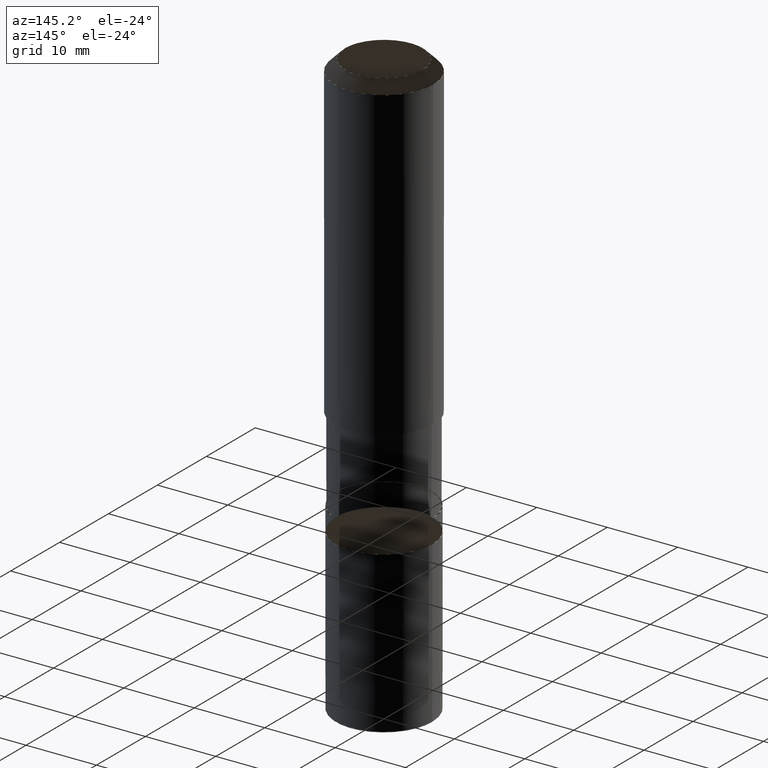
[diagram: clean part render]
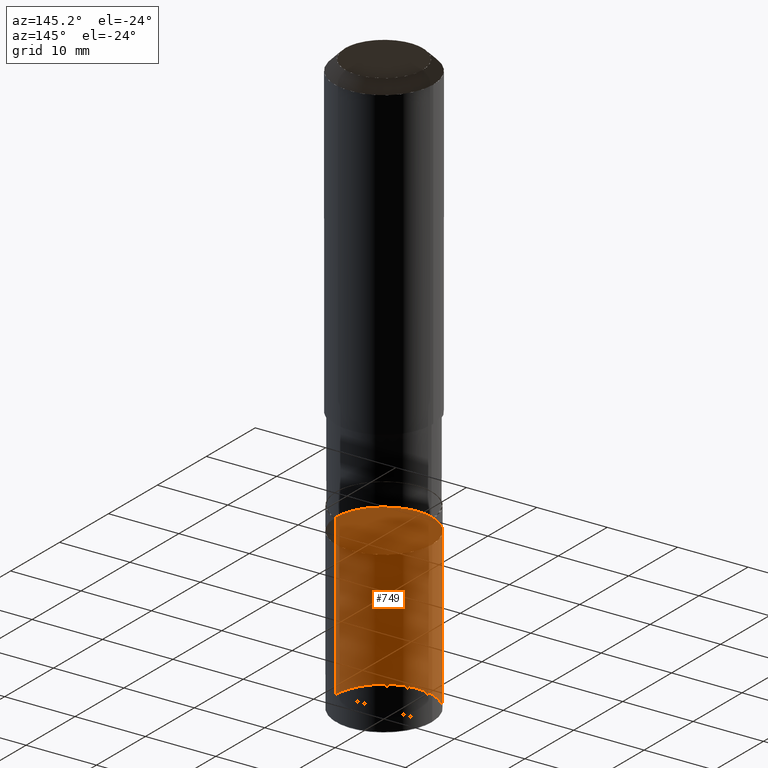
[diagram: same view with one face highlighted and labeled with its STEP entity id]
A machine part, auxiliary view. The second image highlights one B-rep face of the part: STEP entity #749.
In plain terms, the highlighted face is a freeform B-spline surface patch.
Its self-contained STEP definition (entity closure, byte-faithful):
#620=CARTESIAN_POINT('',(6.85,0.0,-37.9));
#621=CARTESIAN_POINT('',(6.85,6.85,-37.9));
#622=CARTESIAN_POINT('',(0.0,6.85,-37.9));
#623=CARTESIAN_POINT('',(-6.85,6.85,-37.9));
#624=CARTESIAN_POINT('',(-6.85,0.0,-37.9));
#625=CARTESIAN_POINT('',(6.85,0.0,-15.25));
#626=CARTESIAN_POINT('',(6.85,6.85,-15.25));
#627=CARTESIAN_POINT('',(0.0,6.85,-15.25));
#628=CARTESIAN_POINT('',(-6.85,6.85,-15.25));
#629=CARTESIAN_POINT('',(-6.85,0.0,-15.25));
#730=(
BOUNDED_SURFACE()
B_SPLINE_SURFACE(1,2,(
(#620,#621,#622,#623,#624),
(#625,#626,#627,#628,#629)
), .UNSPECIFIED.,.F.,.F.,.F.)
B_SPLINE_SURFACE_WITH_KNOTS((2,2),(3,2,3),(
0.0,1.0),(
0.0,0.5,1.0), .UNSPECIFIED.)
GEOMETRIC_REPRESENTATION_ITEM()
RATIONAL_B_SPLINE_SURFACE(((1.0,0.707106781187,1.0,0.707106781187,1.0),
(1.0,0.707106781187,1.0,0.707106781187,1.0)
))
REPRESENTATION_ITEM('')
SURFACE()
);
#731=(
BOUNDED_CURVE()
B_SPLINE_CURVE(2,(#624,#623,#622,#621,#620),.UNSPECIFIED.,.F.,.F.)
B_SPLINE_CURVE_WITH_KNOTS((3,2,3),
(0.0,0.5,1.0),.UNSPECIFIED.)
CURVE()
GEOMETRIC_REPRESENTATION_ITEM()
RATIONAL_B_SPLINE_CURVE((1.0,0.707106781187,1.0,0.707106781187,1.0))
REPRESENTATION_ITEM('')
);
#732=(
BOUNDED_CURVE()
B_SPLINE_CURVE(1,(#620,#625),.UNSPECIFIED.,.F.,.F.)
B_SPLINE_CURVE_WITH_KNOTS((2,2),
(0.0,1.0),.UNSPECIFIED.)
CURVE()
GEOMETRIC_REPRESENTATION_ITEM()
RATIONAL_B_SPLINE_CURVE((1.0,1.0))
REPRESENTATION_ITEM('')
);
#733=(
BOUNDED_CURVE()
B_SPLINE_CURVE(2,(#625,#626,#627,#628,#629),.UNSPECIFIED.,.F.,.F.)
B_SPLINE_CURVE_WITH_KNOTS((3,2,3),
(0.0,0.5,1.0),.UNSPECIFIED.)
CURVE()
GEOMETRIC_REPRESENTATION_ITEM()
RATIONAL_B_SPLINE_CURVE((1.0,0.707106781187,1.0,0.707106781187,1.0))
REPRESENTATION_ITEM('')
);
#734=(
BOUNDED_CURVE()
B_SPLINE_CURVE(1,(#629,#624),.UNSPECIFIED.,.F.,.F.)
B_SPLINE_CURVE_WITH_KNOTS((2,2),
(0.0,1.0),.UNSPECIFIED.)
CURVE()
GEOMETRIC_REPRESENTATION_ITEM()
RATIONAL_B_SPLINE_CURVE((1.0,1.0))
REPRESENTATION_ITEM('')
);
#735=VERTEX_POINT('',#620);
#736=VERTEX_POINT('',#624);
#737=VERTEX_POINT('',#625);
#738=VERTEX_POINT('',#629);
#739=EDGE_CURVE('',#736,#735,#731,.T.);
#740=EDGE_CURVE('',#735,#737,#732,.T.);
#741=EDGE_CURVE('',#737,#738,#733,.T.);
#742=EDGE_CURVE('',#738,#736,#734,.T.);
#743=ORIENTED_EDGE('',*,*,#739,.T.);
#744=ORIENTED_EDGE('',*,*,#740,.T.);
#745=ORIENTED_EDGE('',*,*,#741,.T.);
#746=ORIENTED_EDGE('',*,*,#742,.T.);
#747=EDGE_LOOP('',(#743,#744,#745,#746));
#748=FACE_OUTER_BOUND('',#747,.T.);
#749=ADVANCED_FACE('',(#748),#730,.T.);